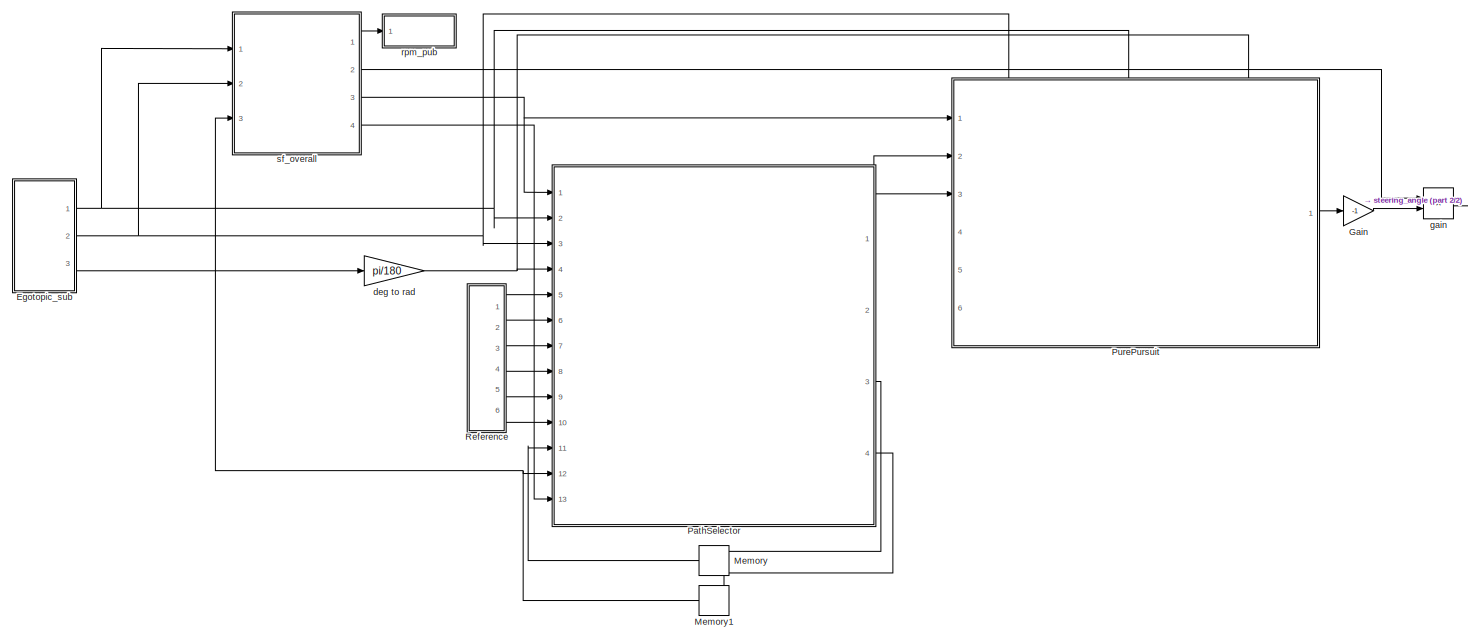
[diagram: root canvas - part 1/2, most of the canvas]
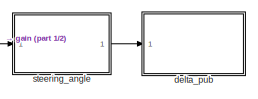
[diagram: root canvas - part 2/2, middle right region]
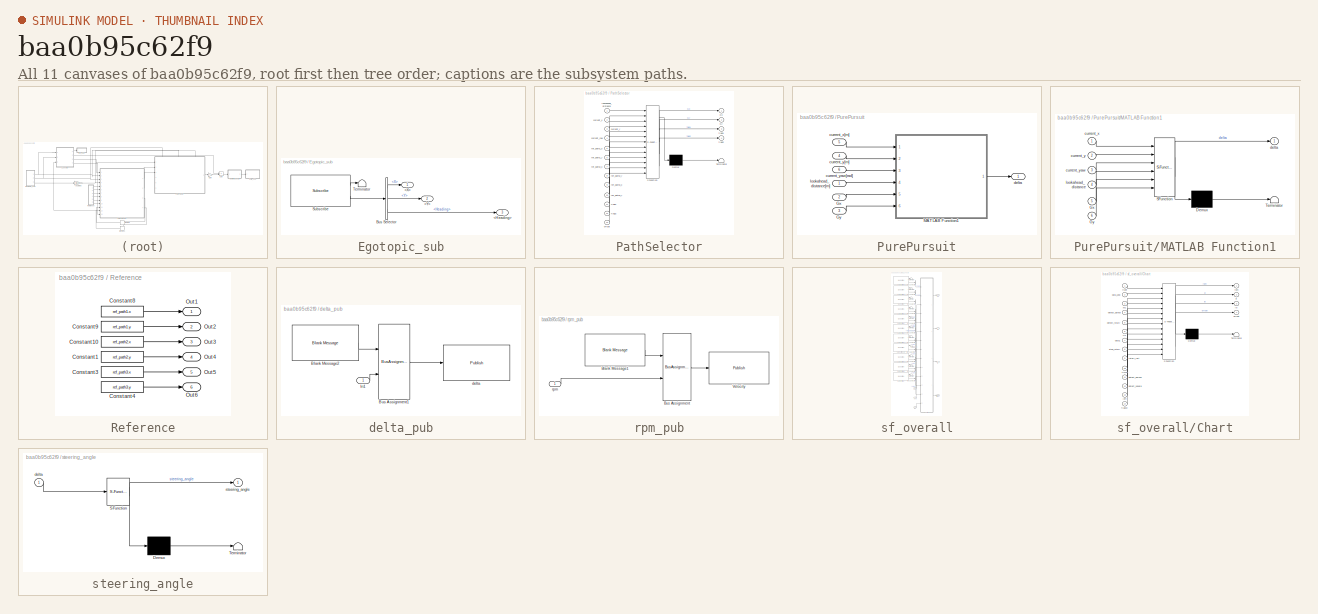
[diagram: thumbnail index - all 11 canvases of the model, root first then tree order]
MODEL slx_baa0b95c62f9
KIND model
CONFIG AbsTol = auto
CONFIG EnableMultiTasking = off
CONFIG FixedStep = 0.001
CONFIG MaxStep = auto
CONFIG MinStep = auto
CONFIG RelTol = 1e-3
CONFIG SampleTimeConstraint = Unconstrained
CONFIG SolverName = VariableStepAuto
CONFIG StartTime = 0.0
CONFIG StopTime = inf
BLOCK [SubSystem] Egotopic_sub
  Ports = [0, 3]
  RequestExecContextInheritance = off
BLOCK [Outport] Egotopic_sub/<Heading>
  Port = 3
BLOCK [Outport] Egotopic_sub/<X>
BLOCK [Outport] Egotopic_sub/<Y>
  Port = 2
BLOCK [BusSelector] Egotopic_sub/Bus Selector
  OutputSignals = Position.X,Position.Y,Heading
  Ports = [1, 3]
BLOCK [Reference] Egotopic_sub/Subscribe  REF=robotlib/Subscribe
  Ports = [0, 2]
  SourceBlock = robotlib/Subscribe
  SourceProductBaseCode = RR
  SourceType = ROS Subscribe
BLOCK [Terminator] Egotopic_sub/Terminator
BLOCK [Gain] Gain
  Gain = -1
BLOCK [Memory] Memory
  NameLocation = top
BLOCK [Memory] Memory1
  NameLocation = top
BLOCK [SubSystem] PathSelector
  ErrorFcn = Stateflow.Translate.translate
  PermitHierarchicalResolution = ExplicitOnly
  Ports = [13, 4]
  RequestExecContextInheritance = off
  SFBlockType = MATLAB Function
  TreatAsAtomicUnit = on
BLOCK [Demux] PathSelector/ Demux 
  Outputs = 1
  Ports = [1, 1]
BLOCK [S-Function] PathSelector/ SFunction 
  EnableBusSupport = on
  FunctionName = sf_sfun
  PortCounts = [13 5]
  Ports = [13, 5]
  SFcnIsStateOwnerBlock = off
  SFunctionDeploymentMode = off
  Tag = Stateflow S-Function 9
BLOCK [Terminator] PathSelector/ Terminator 
BLOCK [Outport] PathSelector/Gx
BLOCK [Outport] PathSelector/Gy
  Port = 2
BLOCK [Inport] PathSelector/current_x
  Port = 2
BLOCK [Inport] PathSelector/current_y
  Port = 3
BLOCK [Inport] PathSelector/current_yaw
  Port = 4
BLOCK [Outport] PathSelector/flag1
  Port = 3
BLOCK [Inport] PathSelector/flag1 
  Port = 11
BLOCK [Outport] PathSelector/flag2
  Port = 4
BLOCK [Inport] PathSelector/flag2 
  Port = 12
BLOCK [Inport] PathSelector/lookahead_distance
BLOCK [Inport] PathSelector/offset
  Port = 13
BLOCK [Inport] PathSelector/ref_path1_x
  Port = 5
BLOCK [Inport] PathSelector/ref_path1_y
  Port = 6
BLOCK [Inport] PathSelector/ref_path2_x
  Port = 7
BLOCK [Inport] PathSelector/ref_path2_y
  Port = 8
BLOCK [Inport] PathSelector/ref_path3_x
  Port = 9
BLOCK [Inport] PathSelector/ref_path3_y
  Port = 10
BLOCK [SubSystem] PurePursuit
  PortSchema = {"entries":[{"content":{"sides":[{"content":{"connectorIds":["In1","In2","In3"]},"type":"ConnectorPlacement.EquallySpacedRectSide","uuid":"edaa732b-c16a-4ee2-a2e3-938fc58760b6"},{"content":{"connectorIds":["Out1"],"side":"RIGHT"},"type":"ConnectorPlacement.EquallySpacedRectSide","uuid":"801e571f-7b3b-4885-8003-b37606c63344"},{"content":{"connectorIds":["In4","In5","In6"],"side":"TOP"},"type":"Conn...<+269ch>
  Ports = [6, 1]
  RequestExecContextInheritance = off
BLOCK [Inport] PurePursuit/Gx
  Port = 2
BLOCK [Inport] PurePursuit/Gy
  Port = 3
BLOCK [SubSystem] PurePursuit/MATLAB Function1
  ErrorFcn = Stateflow.Translate.translate
  PermitHierarchicalResolution = ExplicitOnly
  Ports = [6, 1]
  RequestExecContextInheritance = off
  SFBlockType = MATLAB Function
  TreatAsAtomicUnit = on
BLOCK [Demux] PurePursuit/MATLAB Function1/ Demux 
  Outputs = 1
  Ports = [1, 1]
BLOCK [S-Function] PurePursuit/MATLAB Function1/ SFunction 
  EnableBusSupport = on
  FunctionName = sf_sfun
  PortCounts = [6 2]
  Ports = [6, 2]
  SFcnIsStateOwnerBlock = off
  SFunctionDeploymentMode = off
  Tag = Stateflow S-Function 8
BLOCK [Terminator] PurePursuit/MATLAB Function1/ Terminator 
BLOCK [Inport] PurePursuit/MATLAB Function1/Gx
  Port = 5
BLOCK [Inport] PurePursuit/MATLAB Function1/Gy
  Port = 6
BLOCK [Inport] PurePursuit/MATLAB Function1/current_x
BLOCK [Inport] PurePursuit/MATLAB Function1/current_y
  Port = 2
BLOCK [Inport] PurePursuit/MATLAB Function1/current_yaw
  Port = 3
BLOCK [Outport] PurePursuit/MATLAB Function1/delta
BLOCK [Inport] PurePursuit/MATLAB Function1/lookahead_distance
  Port = 4
BLOCK [Inport] PurePursuit/current_x[m]
  Port = 5
BLOCK [Inport] PurePursuit/current_y[m]
  Port = 4
BLOCK [Inport] PurePursuit/current_yaw[rad]
  Port = 6
BLOCK [Outport] PurePursuit/delta
BLOCK [Inport] PurePursuit/lookahead_distance[m]
BLOCK [SubSystem] Reference
  Ports = [0, 6]
  RequestExecContextInheritance = off
BLOCK [Constant] Reference/Constant1
  Value = ref_path2.y
BLOCK [Constant] Reference/Constant10
  Value = ref_path2.x
BLOCK [Constant] Reference/Constant3
  Value = ref_path3.x
BLOCK [Constant] Reference/Constant4
  Value = ref_path3.y
BLOCK [Constant] Reference/Constant8
  Value = ref_path1.x
BLOCK [Constant] Reference/Constant9
  Value = ref_path1.y
BLOCK [Outport] Reference/Out1
BLOCK [Outport] Reference/Out2
  Port = 2
BLOCK [Outport] Reference/Out3
  Port = 3
BLOCK [Outport] Reference/Out4
  Port = 4
BLOCK [Outport] Reference/Out5
  Port = 5
BLOCK [Outport] Reference/Out6
  Port = 6
BLOCK [Gain] deg to rad
  Gain = pi/180
BLOCK [SubSystem] delta_pub
  Ports = [1]
  RequestExecContextInheritance = off
BLOCK [Reference] delta_pub/Blank Message2  REF=robotlib/Blank Message
  Ports = [0, 1]
  SourceBlock = robotlib/Blank Message
  SourceProductBaseCode = RR
  SourceType = ROS Blank Message
BLOCK [BusAssignment] delta_pub/Bus Assignment1
  AssignedSignals = Data
  Ports = [2, 1]
BLOCK [Inport] delta_pub/In1
BLOCK [Reference] delta_pub/delta  REF=robotlib/Publish
  Ports = [1]
  SourceBlock = robotlib/Publish
  SourceProductBaseCode = RR
  SourceType = ROS Publish
BLOCK [Product] gain
  Ports = [2, 1]
BLOCK [SubSystem] rpm_pub
  Ports = [1]
  RequestExecContextInheritance = off
BLOCK [Reference] rpm_pub/Blank Message1  REF=robotlib/Blank Message
  Ports = [0, 1]
  SourceBlock = robotlib/Blank Message
  SourceProductBaseCode = RR
  SourceType = ROS Blank Message
BLOCK [BusAssignment] rpm_pub/Bus Assignment
  AssignedSignals = Data
  Ports = [2, 1]
BLOCK [Reference] rpm_pub/Velocity  REF=robotlib/Publish
  Ports = [1]
  SourceBlock = robotlib/Publish
  SourceProductBaseCode = RR
  SourceType = ROS Publish
BLOCK [Inport] rpm_pub/rpm
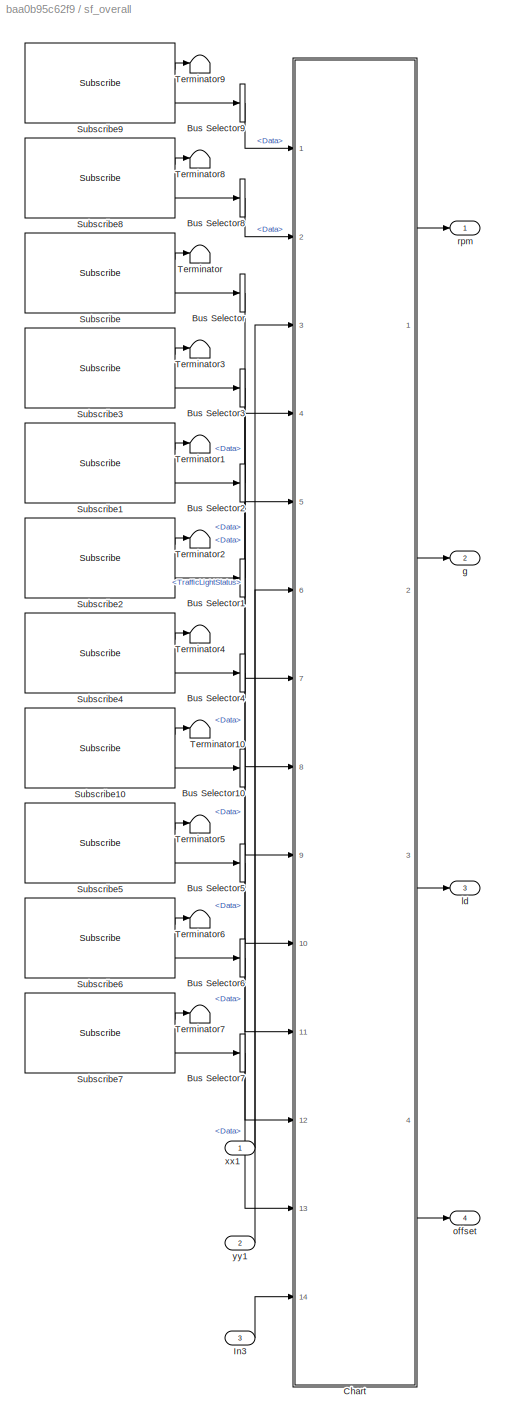
BLOCK [SubSystem] sf_overall
  Ports = [3, 4]
  RequestExecContextInheritance = off
BLOCK [BusSelector] sf_overall/Bus Selector
  OutputSignals = TrafficLightStatus
  Ports = [1, 1]
BLOCK [BusSelector] sf_overall/Bus Selector1
  OutputSignals = Data
  Ports = [1, 1]
BLOCK [BusSelector] sf_overall/Bus Selector10
  OutputSignals = Data
  Ports = [1, 1]
BLOCK [BusSelector] sf_overall/Bus Selector2
  OutputSignals = Data
  Ports = [1, 1]
BLOCK [BusSelector] sf_overall/Bus Selector3
  OutputSignals = Data
  Ports = [1, 1]
BLOCK [BusSelector] sf_overall/Bus Selector4
  OutputSignals = Data
  Ports = [1, 1]
BLOCK [BusSelector] sf_overall/Bus Selector5
  OutputSignals = Data
  Ports = [1, 1]
BLOCK [BusSelector] sf_overall/Bus Selector6
  OutputSignals = Data
  Ports = [1, 1]
BLOCK [BusSelector] sf_overall/Bus Selector7
  OutputSignals = Data
  Ports = [1, 1]
BLOCK [BusSelector] sf_overall/Bus Selector8
  OutputSignals = Data
  Ports = [1, 1]
BLOCK [BusSelector] sf_overall/Bus Selector9
  OutputSignals = Data
  Ports = [1, 1]
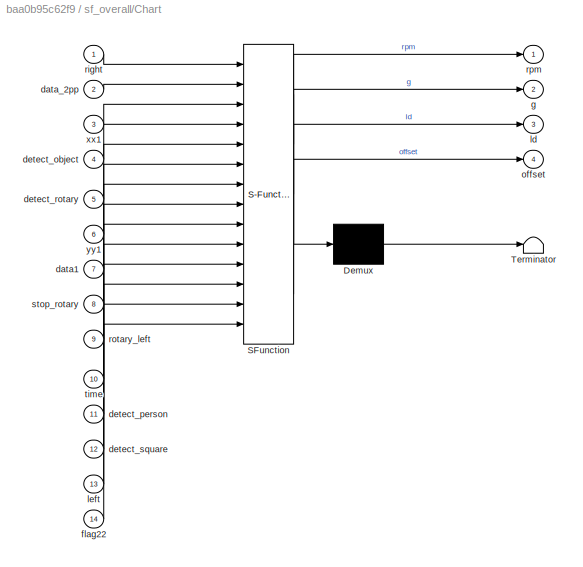
BLOCK [SubSystem] sf_overall/Chart
  ErrorFcn = Stateflow.Translate.translate
  PermitHierarchicalResolution = ExplicitOnly
  PortSchema = {"entries":[{"content":{"sides":[{"content":{"connectorIds":["In1","In2","In7","In10","In4","In5","In8","In9","In11","In12","In13","In3","In6","In14"]},"type":"ConnectorPlacement.EquallySpacedRectSide","uuid":"b76d73ed-8faa-4597-b525-d0c269928441"},{"content":{"connectorIds":["Out1","Out2","Out3","Out4"],"side":"RIGHT"},"type":"ConnectorPlacement.EquallySpacedRectSide","uuid":"2f5cfc5d-7c35-4e01-a...<+344ch>
  Ports = [14, 4]
  RequestExecContextInheritance = off
  SFBlockType = Chart
  TreatAsAtomicUnit = on
BLOCK [Demux] sf_overall/Chart/ Demux 
  Outputs = 1
  Ports = [1, 1]
BLOCK [S-Function] sf_overall/Chart/ SFunction 
  EnableBusSupport = on
  FunctionName = sf_sfun
  PortCounts = [14 5]
  Ports = [14, 5]
  SFcnIsStateOwnerBlock = off
  SFunctionDeploymentMode = off
  Tag = Stateflow S-Function 2
BLOCK [Terminator] sf_overall/Chart/ Terminator 
BLOCK [Inport] sf_overall/Chart/data1
  Port = 7
BLOCK [Inport] sf_overall/Chart/data_2pp
  Port = 2
BLOCK [Inport] sf_overall/Chart/detect_object
  Port = 4
BLOCK [Inport] sf_overall/Chart/detect_person
  Port = 11
BLOCK [Inport] sf_overall/Chart/detect_rotary
  Port = 5
BLOCK [Inport] sf_overall/Chart/detect_square
  Port = 12
BLOCK [Inport] sf_overall/Chart/flag22
  Port = 14
BLOCK [Outport] sf_overall/Chart/g
  Port = 2
BLOCK [Outport] sf_overall/Chart/ld
  Port = 3
BLOCK [Inport] sf_overall/Chart/left
  Port = 13
BLOCK [Outport] sf_overall/Chart/offset
  Port = 4
BLOCK [Inport] sf_overall/Chart/right
BLOCK [Inport] sf_overall/Chart/rotary_left
  Port = 9
BLOCK [Outport] sf_overall/Chart/rpm
BLOCK [Inport] sf_overall/Chart/stop_rotary
  Port = 8
BLOCK [Inport] sf_overall/Chart/time
  Port = 10
BLOCK [Inport] sf_overall/Chart/xx1
  Port = 3
BLOCK [Inport] sf_overall/Chart/yy1
  Port = 6
BLOCK [Inport] sf_overall/In3
  Port = 3
BLOCK [Reference] sf_overall/Subscribe  REF=robotlib/Subscribe
  Ports = [0, 2]
  SourceBlock = robotlib/Subscribe
  SourceProductBaseCode = RR
  SourceType = ROS Subscribe
BLOCK [Reference] sf_overall/Subscribe1  REF=robotlib/Subscribe
  Ports = [0, 2]
  SourceBlock = robotlib/Subscribe
  SourceProductBaseCode = RR
  SourceType = ROS Subscribe
BLOCK [Reference] sf_overall/Subscribe10  REF=robotlib/Subscribe
  Ports = [0, 2]
  SourceBlock = robotlib/Subscribe
  SourceProductBaseCode = RR
  SourceType = ROS Subscribe
BLOCK [Reference] sf_overall/Subscribe2  REF=robotlib/Subscribe
  Ports = [0, 2]
  SourceBlock = robotlib/Subscribe
  SourceProductBaseCode = RR
  SourceType = ROS Subscribe
BLOCK [Reference] sf_overall/Subscribe3  REF=robotlib/Subscribe
  Ports = [0, 2]
  SourceBlock = robotlib/Subscribe
  SourceProductBaseCode = RR
  SourceType = ROS Subscribe
BLOCK [Reference] sf_overall/Subscribe4  REF=robotlib/Subscribe
  Ports = [0, 2]
  SourceBlock = robotlib/Subscribe
  SourceProductBaseCode = RR
  SourceType = ROS Subscribe
BLOCK [Reference] sf_overall/Subscribe5  REF=robotlib/Subscribe
  Ports = [0, 2]
  SourceBlock = robotlib/Subscribe
  SourceProductBaseCode = RR
  SourceType = ROS Subscribe
BLOCK [Reference] sf_overall/Subscribe6  REF=robotlib/Subscribe
  Ports = [0, 2]
  SourceBlock = robotlib/Subscribe
  SourceProductBaseCode = RR
  SourceType = ROS Subscribe
BLOCK [Reference] sf_overall/Subscribe7  REF=robotlib/Subscribe
  Ports = [0, 2]
  SourceBlock = robotlib/Subscribe
  SourceProductBaseCode = RR
  SourceType = ROS Subscribe
BLOCK [Reference] sf_overall/Subscribe8  REF=robotlib/Subscribe
  Ports = [0, 2]
  SourceBlock = robotlib/Subscribe
  SourceProductBaseCode = RR
  SourceType = ROS Subscribe
BLOCK [Reference] sf_overall/Subscribe9  REF=robotlib/Subscribe
  Ports = [0, 2]
  SourceBlock = robotlib/Subscribe
  SourceProductBaseCode = RR
  SourceType = ROS Subscribe
BLOCK [Terminator] sf_overall/Terminator
BLOCK [Terminator] sf_overall/Terminator1
BLOCK [Terminator] sf_overall/Terminator10
BLOCK [Terminator] sf_overall/Terminator2
BLOCK [Terminator] sf_overall/Terminator3
BLOCK [Terminator] sf_overall/Terminator4
BLOCK [Terminator] sf_overall/Terminator5
BLOCK [Terminator] sf_overall/Terminator6
BLOCK [Terminator] sf_overall/Terminator7
BLOCK [Terminator] sf_overall/Terminator8
BLOCK [Terminator] sf_overall/Terminator9
BLOCK [Outport] sf_overall/g
  Port = 2
BLOCK [Outport] sf_overall/ld
  Port = 3
BLOCK [Outport] sf_overall/offset
  Port = 4
BLOCK [Outport] sf_overall/rpm
BLOCK [Inport] sf_overall/xx1
BLOCK [Inport] sf_overall/yy1
  Port = 2
BLOCK [SubSystem] steering_angle
  ErrorFcn = Stateflow.Translate.translate
  PermitHierarchicalResolution = ExplicitOnly
  Ports = [1, 1]
  RequestExecContextInheritance = off
  SFBlockType = MATLAB Function
  TreatAsAtomicUnit = on
BLOCK [Demux] steering_angle/ Demux 
  Outputs = 1
  Ports = [1, 1]
BLOCK [S-Function] steering_angle/ SFunction 
  EnableBusSupport = on
  FunctionName = sf_sfun
  PortCounts = [1 2]
  Ports = [1, 2]
  SFcnIsStateOwnerBlock = off
  SFunctionDeploymentMode = off
  Tag = Stateflow S-Function 3
BLOCK [Terminator] steering_angle/ Terminator 
BLOCK [Inport] steering_angle/delta
BLOCK [Outport] steering_angle/steering_angle
LINE Egotopic_sub/Bus Selector:1 -> Egotopic_sub/<X>:1
LINE Egotopic_sub/Bus Selector:2 -> Egotopic_sub/<Y>:1
LINE Egotopic_sub/Bus Selector:3 -> Egotopic_sub/<Heading>:1
LINE Egotopic_sub/Subscribe:1 -> Egotopic_sub/Terminator:1
LINE Egotopic_sub/Subscribe:2 -> Egotopic_sub/Bus Selector:1
NET Egotopic_sub:1 -> PathSelector:2, PurePursuit:5, sf_overall:1
NET Egotopic_sub:2 -> PathSelector:3, PurePursuit:4, sf_overall:2
LINE Egotopic_sub:3 -> deg to rad:1
LINE Gain:1 -> gain:2
NET Memory1:1 -> PathSelector:12, sf_overall:3
LINE Memory:1 -> PathSelector:11
LINE PathSelector:1 -> PurePursuit:2
LINE PathSelector:2 -> PurePursuit:3
LINE PathSelector:3 -> Memory:1
LINE PathSelector:4 -> Memory1:1
LINE PurePursuit/Gx:1 -> PurePursuit/MATLAB Function1:5
LINE PurePursuit/Gy:1 -> PurePursuit/MATLAB Function1:6
LINE PurePursuit/MATLAB Function1:1 -> PurePursuit/delta:1
LINE PurePursuit/current_x[m]:1 -> PurePursuit/MATLAB Function1:1
LINE PurePursuit/current_y[m]:1 -> PurePursuit/MATLAB Function1:2
LINE PurePursuit/current_yaw[rad]:1 -> PurePursuit/MATLAB Function1:3
LINE PurePursuit/lookahead_distance[m]:1 -> PurePursuit/MATLAB Function1:4
LINE PurePursuit:1 -> Gain:1
LINE Reference/Constant10:1 -> Reference/Out3:1
LINE Reference/Constant1:1 -> Reference/Out4:1
LINE Reference/Constant3:1 -> Reference/Out5:1
LINE Reference/Constant4:1 -> Reference/Out6:1
LINE Reference/Constant8:1 -> Reference/Out1:1
LINE Reference/Constant9:1 -> Reference/Out2:1
LINE Reference:1 -> PathSelector:5
LINE Reference:2 -> PathSelector:6
LINE Reference:3 -> PathSelector:7
LINE Reference:4 -> PathSelector:8
LINE Reference:5 -> PathSelector:9
LINE Reference:6 -> PathSelector:10
NET deg to rad:1 -> PathSelector:4, PurePursuit:6
LINE delta_pub/Blank Message2:1 -> delta_pub/Bus Assignment1:1
LINE delta_pub/Bus Assignment1:1 -> delta_pub/delta:1
LINE delta_pub/In1:1 -> delta_pub/Bus Assignment1:2
LINE gain:1 -> steering_angle:1
LINE rpm_pub/Blank Message1:1 -> rpm_pub/Bus Assignment:1
LINE rpm_pub/Bus Assignment:1 -> rpm_pub/Velocity:1
LINE rpm_pub/rpm:1 -> rpm_pub/Bus Assignment:2
LINE sf_overall/Bus Selector10:1 -> sf_overall/Chart:9
LINE sf_overall/Bus Selector1:1 -> sf_overall/Chart:5
LINE sf_overall/Bus Selector2:1 -> sf_overall/Chart:4
LINE sf_overall/Bus Selector3:1 -> sf_overall/Chart:10
LINE sf_overall/Bus Selector4:1 -> sf_overall/Chart:8
LINE sf_overall/Bus Selector5:1 -> sf_overall/Chart:11
LINE sf_overall/Bus Selector6:1 -> sf_overall/Chart:12
LINE sf_overall/Bus Selector7:1 -> sf_overall/Chart:13
LINE sf_overall/Bus Selector8:1 -> sf_overall/Chart:2
LINE sf_overall/Bus Selector9:1 -> sf_overall/Chart:1
LINE sf_overall/Bus Selector:1 -> sf_overall/Chart:7
LINE sf_overall/Chart:1 -> sf_overall/rpm:1
LINE sf_overall/Chart:2 -> sf_overall/g:1
LINE sf_overall/Chart:3 -> sf_overall/ld:1
LINE sf_overall/Chart:4 -> sf_overall/offset:1
LINE sf_overall/In3:1 -> sf_overall/Chart:14
LINE sf_overall/Subscribe10:1 -> sf_overall/Terminator10:1
LINE sf_overall/Subscribe10:2 -> sf_overall/Bus Selector10:1
LINE sf_overall/Subscribe1:1 -> sf_overall/Terminator1:1
LINE sf_overall/Subscribe1:2 -> sf_overall/Bus Selector2:1
LINE sf_overall/Subscribe2:1 -> sf_overall/Terminator2:1
LINE sf_overall/Subscribe2:2 -> sf_overall/Bus Selector1:1
LINE sf_overall/Subscribe3:1 -> sf_overall/Terminator3:1
LINE sf_overall/Subscribe3:2 -> sf_overall/Bus Selector3:1
LINE sf_overall/Subscribe4:1 -> sf_overall/Terminator4:1
LINE sf_overall/Subscribe4:2 -> sf_overall/Bus Selector4:1
LINE sf_overall/Subscribe5:1 -> sf_overall/Terminator5:1
LINE sf_overall/Subscribe5:2 -> sf_overall/Bus Selector5:1
LINE sf_overall/Subscribe6:1 -> sf_overall/Terminator6:1
LINE sf_overall/Subscribe6:2 -> sf_overall/Bus Selector6:1
LINE sf_overall/Subscribe7:1 -> sf_overall/Terminator7:1
LINE sf_overall/Subscribe7:2 -> sf_overall/Bus Selector7:1
LINE sf_overall/Subscribe8:1 -> sf_overall/Terminator8:1
LINE sf_overall/Subscribe8:2 -> sf_overall/Bus Selector8:1
LINE sf_overall/Subscribe9:1 -> sf_overall/Terminator9:1
LINE sf_overall/Subscribe9:2 -> sf_overall/Bus Selector9:1
LINE sf_overall/Subscribe:1 -> sf_overall/Terminator:1
LINE sf_overall/Subscribe:2 -> sf_overall/Bus Selector:1
LINE sf_overall/xx1:1 -> sf_overall/Chart:3
LINE sf_overall/yy1:1 -> sf_overall/Chart:6
LINE sf_overall:1 -> rpm_pub:1
LINE sf_overall:2 -> gain:1
NET sf_overall:3 -> PathSelector:1, PurePursuit:1
LINE sf_overall:4 -> PathSelector:13
LINE steering_angle:1 -> delta_pub:1
note: NET lines group one-source signal fan-out (src -> all destinations, sorted); 1:1 wires keep LINE
CHART sf_overall/Chart states=32 transitions=45
  STATE_LABEL 'Others1\ndu :\nrpm = 0;\ng = 0;\nld = 0;'
  STATE_LABEL 'm3_2\ndu :\nrpm = 0;\nld = 0.8;\ng = 25;'
  STATE_LABEL 'm5_2\ndu :\nrpm = 10000;\nld = 1;\ng = 20;'
  STATE_LABEL 'm5_3\ndu :\nrpm = 0;\nld = 1;\ng = 20;'
  STATE_LABEL 'm4to5\ndu :\nrpm = 10000;\nld = 1;\ng = 20;'
  STATE_LABEL 'LeftLight1\ndu :\nrpm = 10000;\nld = 1;\ng = 20;\n'
  STATE_LABEL 'm4\ndu :\nrpm = 10000;\nld = 1;\ng = 20;'
  STATE_LABEL 'm4_2\ndu :\nrpm = 10000;\nld = 1;\ng = 20;'
  STATE_LABEL 'm3_1\ndu :\nrpm = 10000;\nld = 1;\ng = 20;'
  STATE_LABEL 'm5_4\ndu :\nrpm = 10000;\nld = 1;\ng = 20;'
  STATE_LABEL 'range_in1\ndu :\noffset = 0.42;'
  STATE_LABEL 'range_in3\ndu :\noffset = 0.42;'
  STATE_LABEL 'Others\ndu :\nrpm = 0;\ng = 0;\nld = 0;'
  STATE_LABEL 'rotary2\ndu :\nrpm = 1500;\nld = 0.7;\ng = 25;'
  STATE_LABEL 'range_in2\ndu :\noffset = 0.42;'
  STATE_LABEL 'rotary6\ndu:\n rpm = 0;\n ld = 0.4;\n g = 17;'
  STATE_LABEL 'q  = eq_range(x1,ax)'
  STATE_LABEL 'SCRIPT:\nfunction q  = eq_range(x1,ax)\n\n\naaxp = ax + 0.057; \naaxm = ax - 0.057;\nif (aaxm < x1) && (x1 < aaxp)\n    q = 1;\nelse \n    q = 0;\nend\n'
  STATE_LABEL 'rotary12\ndu:\n rpm = 100;\n ld = 0.5;\n g = 25;'
  STATE_LABEL 'm3m3\ndu :\nrpm = 10000;\nld = 1;\ng = 20;'
  STATE_LABEL 'q  = cal_range(x1,y1)'
  STATE_LABEL 'SCRIPT:\nfunction q  = cal_range(x1,y1)\n\n% x_range = 5.74:0.01:7.7;\n% y_range = -2.22:0.01:2.6;\n\na = x1;\nb = y1;\n\nif (a > 5.74) && (a < 7.7) && (b < 3) && (b > -2.45)\n    q = 1;\nelse\n    q = 0;\nend\n'
  STATE_LABEL 'rotary10\ndu:\n rpm = 1600;\n ld = 0.6;\n g = 30;'
  STATE_LABEL 'mission1\ndu :\n rpm = 0;\n ld = 0.7;\n g = 10;\n'
  STATE_LABEL 'LeftLight\ndu :\nrpm = 10000;\nld = 1;\ng = 20;'
  STATE_LABEL 'm2m3\ndu:\n rpm = 10000;\n ld = 0.85;\n g = 19;'
  STATE_LABEL 'rotary1\ndu:\n rpm = 0;\n ld = 0;\n g = 17;\n'
  STATE_LABEL 'Initial\ndu :\n rpm = 10000;\n ld = 0.7;\n g = 10;'
  STATE_LABEL 'rotary3\ndu:\n rpm =1500;\n ld = 0.7;\n g = 25;'
  STATE_LABEL 'mission1_1\ndu :\n rpm = 10000;\n ld = 0.7;\n g = 10;'
  STATE_LABEL 'm3\ndu :\nrpm = 0;\nld = 0;\ng = 0;'
  STATE_LABEL 'm2m33\ndu:\n rpm = 10000;\n ld = 0.85;\n g = 19;'
  STATE_LABEL 'rotary9\ndu:\n rpm = 1600;\n ld = 0.6;\n g = 30;'
  STATE_LABEL 'rotary11\ndu:\n rpm = 100;\n ld = 0.5;\n g = 25;'
CHART steering_angle states=1 transitions=1
  STATE_LABEL 'eML_blk_kernel()'
  STATE_LABEL 'SCRIPT:\nfunction steering_angle = fcn(delta)\n\nsteering_angle = 0;\n\nif delta > 0\n    steering_angle = 0.5+((0.5)/180)*(delta*180/pi);\nelseif delta < 0\n    steering_angle = 0.5+((0.5)/180)*(delta*180/pi);\nelseif delta == 0\n    steering_angle = 0.5;\nend'
CHART PurePursuit/MATLAB Function1 states=1 transitions=1
  STATE_LABEL 'eML_blk_kernel()'
  STATE_LABEL 'SCRIPT:\nfunction delta = fcn(current_x, current_y, current_yaw, lookahead_distance, Gx, Gy)\n\ne_ld = -(Gx-current_x)*sin(current_yaw) + (Gy-current_y)*cos(current_yaw);\nsin_alpha = e_ld / lookahead_distance;\nL = 0.3;\ndelta = atan2(2*L*sin_alpha,lookahead_distance);'
CHART PathSelector states=1 transitions=1
  STATE_LABEL 'eML_blk_kernel()'
  STATE_LABEL 'SCRIPT:\nfunction [Gx, Gy, flag1, flag2] = PathSelector(lookahead_distance, current_x, current_y, current_yaw, ref_path1_x, ref_path1_y, ref_path2_x, ref_path2_y, ref_path3_x, ref_path3_y, flag1, flag2,offset)\n% Select flag\nif (current_x > 5.7905) && (current_x < 6.2050) && (current_y > 3.4810) && (current_y < 4.2231)\n    flag1 = flag1 + 1;\nelseif (current_x > -2.5119) && (current_x < -1.9794) && (...<+758ch>'
CHART  states=0 transitions=0
CHART  states=0 transitions=0
CHART  states=0 transitions=0
CHART  states=0 transitions=0
